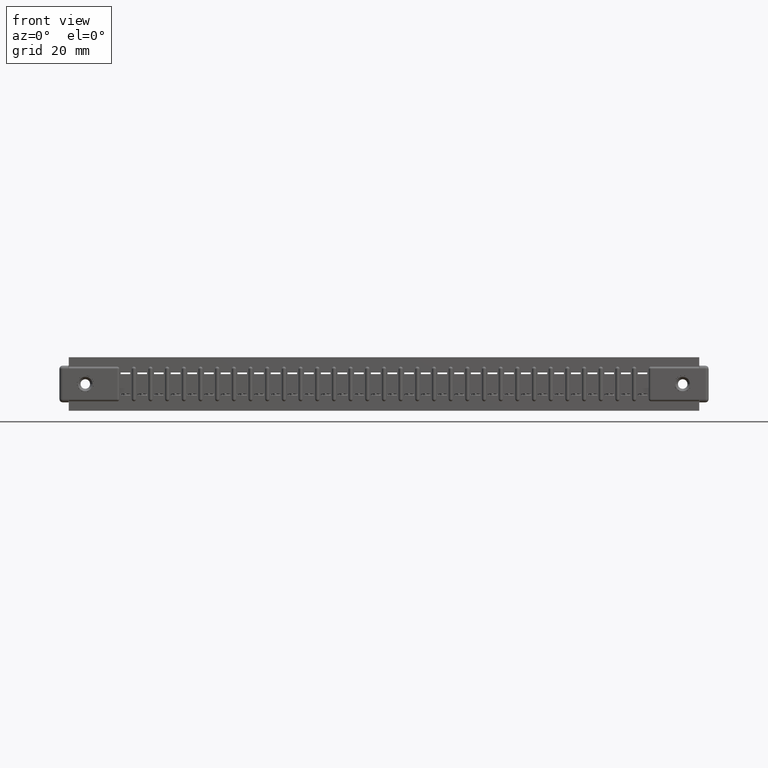
[diagram: clean part render]
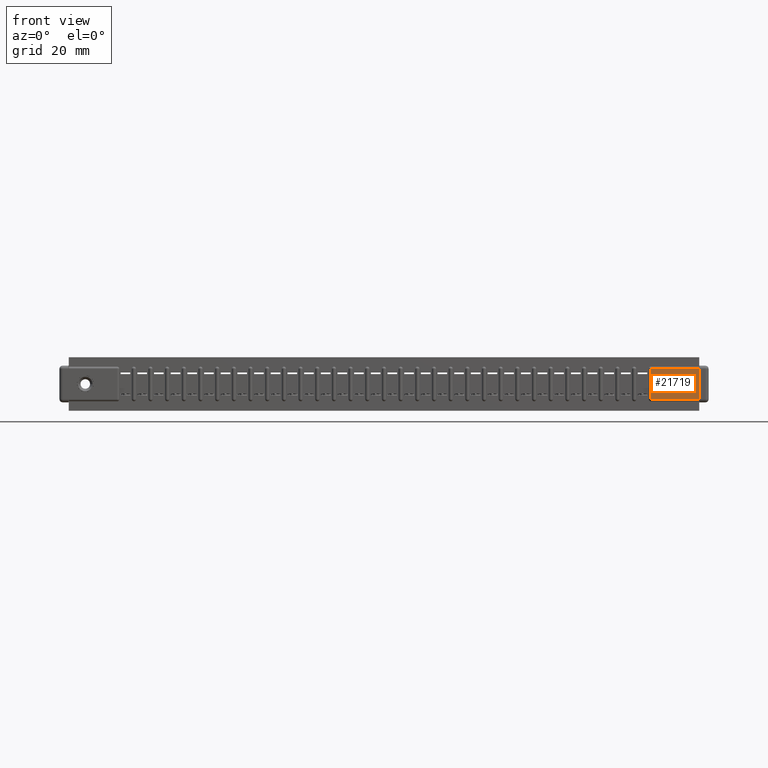
[diagram: same view with one face highlighted and labeled with its STEP entity id]
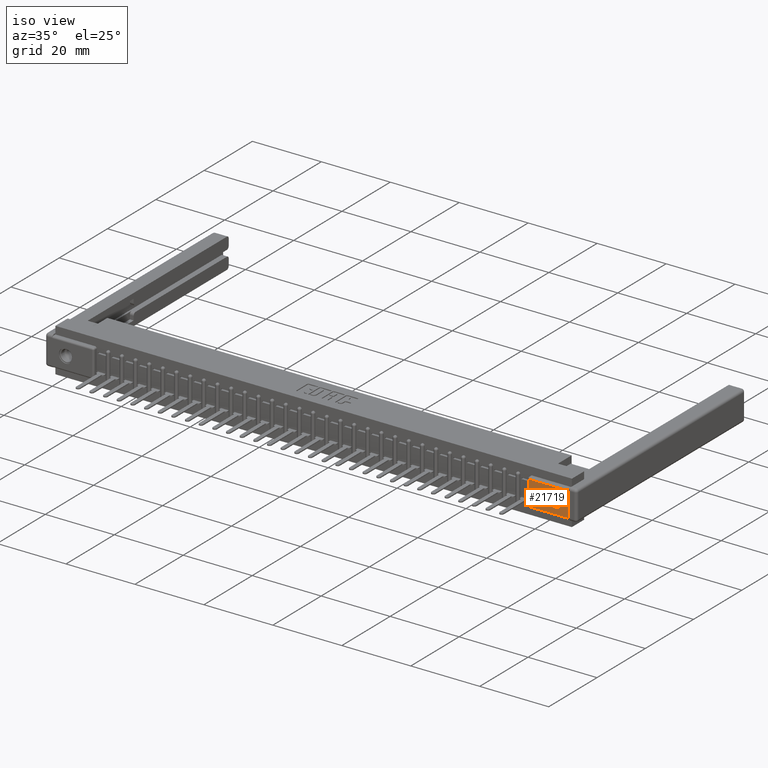
[diagram: same view with one face highlighted and labeled with its STEP entity id]
A machine part, front view. The second image highlights one B-rep face of the part: STEP entity #21719.
A second angle (iso view) of the same face is appended — the face is thin or edge-on in the first view.
In plain terms, the highlighted planar face has unit normal (0, -1, 0).
Its self-contained STEP definition (entity closure, byte-faithful):
#28 = DIRECTION ( 'NONE',  ( 0.0000000000000000000, 0.0000000000000000000, 1.000000000000000000 ) ) ;
#1335 = EDGE_CURVE ( 'NONE', #13217, #15735, #26752, .T. ) ;
#1617 = CARTESIAN_POINT ( 'NONE',  ( 5.897999999999998799, 0.0000000000000000000, -0.3915000000000004032 ) ) ;
#2114 = VECTOR ( 'NONE', #4211, 39.37007874015748143 ) ;
#2231 = VERTEX_POINT ( 'NONE', #17254 ) ;
#2838 = ORIENTED_EDGE ( 'NONE', *, *, #1335, .F. ) ;
#3651 = EDGE_LOOP ( 'NONE', ( #15599, #10315, #2838, #17555 ) ) ;
#4055 = VECTOR ( 'NONE', #4547, 39.37007874015748143 ) ;
#4211 = DIRECTION ( 'NONE',  ( 1.502516396515342897E-15, -0.0000000000000000000, -1.000000000000000000 ) ) ;
#4367 = CARTESIAN_POINT ( 'NONE',  ( 5.742999999999999439, 0.0000000000000000000, -0.2499999999999997224 ) ) ;
#4547 = DIRECTION ( 'NONE',  ( 0.0000000000000000000, 0.0000000000000000000, -1.000000000000000000 ) ) ;
#5254 = AXIS2_PLACEMENT_3D ( 'NONE', #10312, #22564, #19874 ) ;
#7007 = CARTESIAN_POINT ( 'NONE',  ( 5.897999999999998799, 0.0000000000000000000, -0.1085000000000003462 ) ) ;
#7140 = CARTESIAN_POINT ( 'NONE',  ( -1.475604980021463805E-17, 0.0000000000000000000, -0.1085000000000005682 ) ) ;
#7276 = EDGE_CURVE ( 'NONE', #30798, #14573, #30868, .T. ) ;
#7370 = DIRECTION ( 'NONE',  ( 0.0000000000000000000, -1.000000000000000000, 0.0000000000000000000 ) ) ;
#10062 = FACE_BOUND ( 'NONE', #22617, .T. ) ;
#10312 = CARTESIAN_POINT ( 'NONE',  ( 5.742999999999999439, 0.0000000000000000000, -0.2499999999999997224 ) ) ;
#10315 = ORIENTED_EDGE ( 'NONE', *, *, #21931, .T. ) ;
#11302 = CARTESIAN_POINT ( 'NONE',  ( 5.445000000000000284, 0.0000000000000000000, -0.3915000000000002922 ) ) ;
#12266 = DIRECTION ( 'NONE',  ( 0.0000000000000000000, -0.0000000000000000000, -1.000000000000000000 ) ) ;
#12739 = FACE_OUTER_BOUND ( 'NONE', #3651, .T. ) ;
#13007 = ORIENTED_EDGE ( 'NONE', *, *, #26251, .F. ) ;
#13217 = VERTEX_POINT ( 'NONE', #7007 ) ;
#14573 = VERTEX_POINT ( 'NONE', #28915 ) ;
#14596 = DIRECTION ( 'NONE',  ( 1.000000000000000000, -0.0000000000000000000, -1.507642380609415950E-16 ) ) ;
#15599 = ORIENTED_EDGE ( 'NONE', *, *, #7276, .T. ) ;
#15735 = VERTEX_POINT ( 'NONE', #29654 ) ;
#16234 = VECTOR ( 'NONE', #14596, 39.37007874015748143 ) ;
#16433 = EDGE_CURVE ( 'NONE', #2231, #18530, #29813, .T. ) ;
#17216 = PLANE ( 'NONE',  #22837 ) ;
#17254 = CARTESIAN_POINT ( 'NONE',  ( 5.742999999999999439, 0.0000000000000000000, -0.1719999999999997087 ) ) ;
#17555 = ORIENTED_EDGE ( 'NONE', *, *, #18575, .T. ) ;
#18530 = VERTEX_POINT ( 'NONE', #29048 ) ;
#18575 = EDGE_CURVE ( 'NONE', #13217, #30798, #28893, .T. ) ;
#19874 = DIRECTION ( 'NONE',  ( 0.0000000000000000000, 0.0000000000000000000, 1.000000000000000000 ) ) ;
#21441 = DIRECTION ( 'NONE',  ( -1.000000000000000000, 0.0000000000000000000, -3.769105951523539874E-17 ) ) ;
#21719 = ADVANCED_FACE ( 'NONE', ( #10062, #12739 ), #17216, .T. ) ;
#21838 = CARTESIAN_POINT ( 'NONE',  ( 5.897999999999998799, 0.0000000000000000000, 0.0000000000000000000 ) ) ;
#21931 = EDGE_CURVE ( 'NONE', #14573, #15735, #30988, .T. ) ;
#22564 = DIRECTION ( 'NONE',  ( 0.0000000000000000000, -1.000000000000000000, 0.0000000000000000000 ) ) ;
#22617 = EDGE_LOOP ( 'NONE', ( #13007, #25315 ) ) ;
#22837 = AXIS2_PLACEMENT_3D ( 'NONE', #29758, #24547, #12266 ) ;
#24547 = DIRECTION ( 'NONE',  ( 0.0000000000000000000, -1.000000000000000000, 0.0000000000000000000 ) ) ;
#24800 = VECTOR ( 'NONE', #21441, 39.37007874015748143 ) ;
#25315 = ORIENTED_EDGE ( 'NONE', *, *, #16433, .F. ) ;
#26251 = EDGE_CURVE ( 'NONE', #18530, #2231, #28548, .T. ) ;
#26752 = LINE ( 'NONE', #21838, #4055 ) ;
#27274 = AXIS2_PLACEMENT_3D ( 'NONE', #4367, #7370, #28 ) ;
#27535 = CARTESIAN_POINT ( 'NONE',  ( 5.444999999999998508, 0.0000000000000000000, -0.1085000000000003600 ) ) ;
#28548 = CIRCLE ( 'NONE', #5254, 0.07800000000000002764 ) ;
#28893 = LINE ( 'NONE', #7140, #24800 ) ;
#28915 = CARTESIAN_POINT ( 'NONE',  ( 5.445000000000000284, 0.0000000000000000000, -0.3915000000000002922 ) ) ;
#29048 = CARTESIAN_POINT ( 'NONE',  ( 5.742999999999999439, 0.0000000000000000000, -0.3279999999999997362 ) ) ;
#29654 = CARTESIAN_POINT ( 'NONE',  ( 5.897999999999998799, 0.0000000000000000000, -0.3915000000000004032 ) ) ;
#29758 = CARTESIAN_POINT ( 'NONE',  ( 0.0000000000000000000, 0.0000000000000000000, -0.5000000000000000000 ) ) ;
#29813 = CIRCLE ( 'NONE', #27274, 0.07800000000000002764 ) ;
#30798 = VERTEX_POINT ( 'NONE', #27535 ) ;
#30868 = LINE ( 'NONE', #11302, #2114 ) ;
#30988 = LINE ( 'NONE', #1617, #16234 ) ;